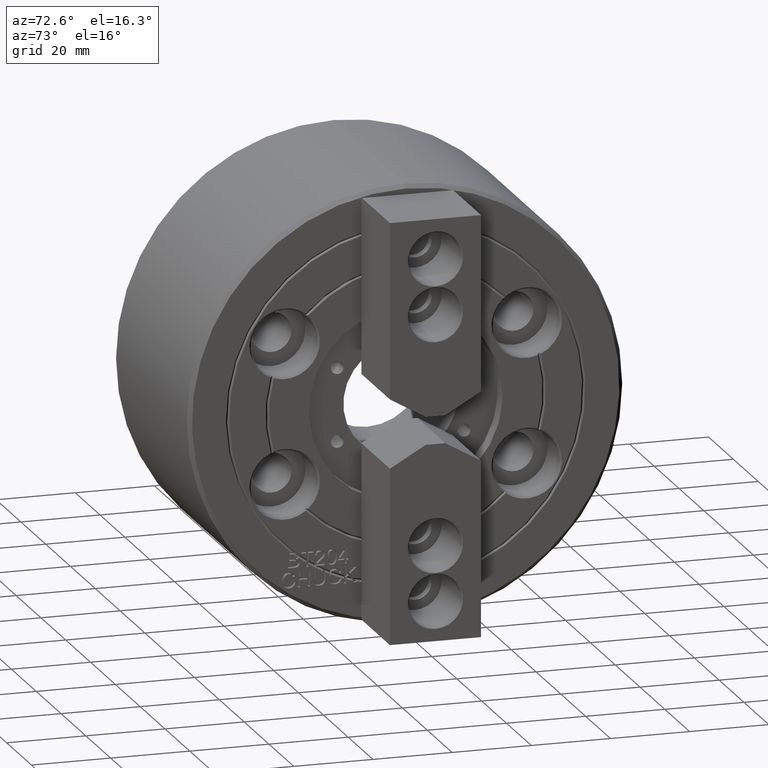
[diagram: clean part render]
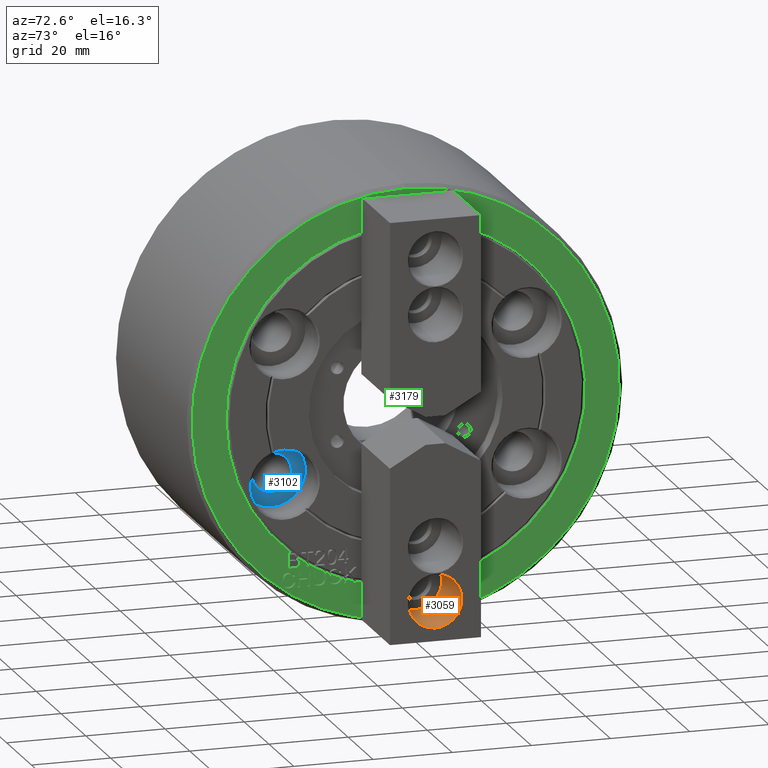
[diagram: same view with three faces highlighted in distinct colors, each labeled with its STEP entity id]
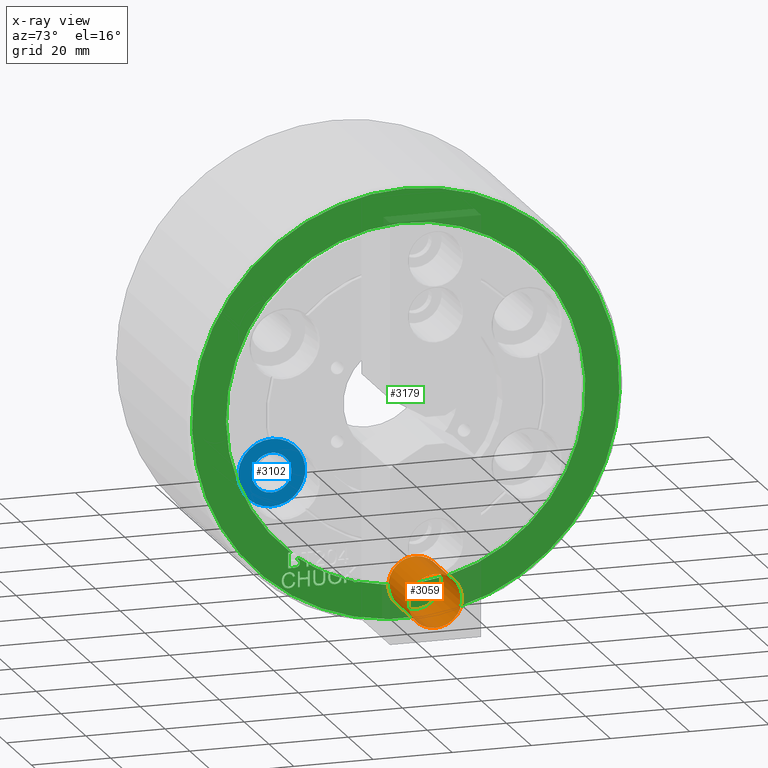
[diagram: x-ray of the same camera — body ghosted, the three highlighted faces saturated]
A machine part, auxiliary view with three faces highlighted in distinct colors.
The next image is the same camera in x-ray (body ghosted, the three faces saturated) — at least one of them is partly hidden behind the body in this view.
Their STEP definitions:

[orange] entity #3059 — the highlighted cylindrical surface (bore or boss wall) has radius 6.75 mm, axis along (1, 0, 0).
#603=CYLINDRICAL_SURFACE('',#4364,6.75);
#753=ORIENTED_EDGE('',*,*,#1626,.F.);
#754=ORIENTED_EDGE('',*,*,#1621,.T.);
#1621=EDGE_CURVE('',#2060,#2060,#2368,.T.);
#1626=EDGE_CURVE('',#2065,#2065,#2373,.T.);
#2060=VERTEX_POINT('',#5537);
#2065=VERTEX_POINT('',#5552);
#2368=CIRCLE('',#4352,6.75);
#2373=CIRCLE('',#4362,6.75);
#2507=EDGE_LOOP('',(#753));
#2508=EDGE_LOOP('',(#754));
#2764=FACE_BOUND('',#2507,.T.);
#2765=FACE_BOUND('',#2508,.T.);
#3059=ADVANCED_FACE('',(#2764,#2765),#603,.F.);
#4352=AXIS2_PLACEMENT_3D('',#5536,#4665,#4666);
#4362=AXIS2_PLACEMENT_3D('',#5551,#4685,#4686);
#4364=AXIS2_PLACEMENT_3D('',#5555,#4689,#4690);
#4665=DIRECTION('',(1.,1.57214084700305E-48,2.56758564431078E-32));
#4666=DIRECTION('',(-2.56758564431078E-32,1.22460635382238E-16,1.));
#4685=DIRECTION('',(1.,1.57214084700305E-48,2.56758564431078E-32));
#4686=DIRECTION('',(-2.56758564431078E-32,1.22460635382238E-16,1.));
#4689=DIRECTION('',(1.,1.57214084700305E-48,2.56758564431078E-32));
#4690=DIRECTION('',(-2.56758564431078E-32,1.22460635382238E-16,1.));
#5536=CARTESIAN_POINT('',(22.5737654320988,-5.26580732143622E-15,-43.));
#5537=CARTESIAN_POINT('',(22.5737654320988,-4.43919803260611E-15,-36.25));
#5551=CARTESIAN_POINT('',(6.27376543209876,-5.26580732143622E-15,-43.));
#5552=CARTESIAN_POINT('',(6.27376543209876,-4.43919803260611E-15,-36.25));
#5555=CARTESIAN_POINT('',(22.7737654320987,-5.26580732143622E-15,-43.));

[blue] entity #3102 — the highlighted planar face has unit normal (-1, 0, -0).
#658=PLANE('',#4435);
#910=ORIENTED_EDGE('',*,*,#1715,.T.);
#911=ORIENTED_EDGE('',*,*,#1716,.T.);
#1715=EDGE_CURVE('',#2135,#2135,#2402,.T.);
#1716=EDGE_CURVE('',#2136,#2136,#2403,.T.);
#2135=VERTEX_POINT('',#5778);
#2136=VERTEX_POINT('',#5781);
#2402=CIRCLE('',#4434,5.);
#2403=CIRCLE('',#4436,8.5);
#2569=EDGE_LOOP('',(#910));
#2570=EDGE_LOOP('',(#911));
#2827=FACE_BOUND('',#2569,.T.);
#2828=FACE_BOUND('',#2570,.T.);
#3102=ADVANCED_FACE('',(#2827,#2828),#658,.F.);
#4434=AXIS2_PLACEMENT_3D('',#5777,#4881,#4882);
#4435=AXIS2_PLACEMENT_3D('',#5779,#4883,#4884);
#4436=AXIS2_PLACEMENT_3D('',#5780,#4885,#4886);
#4881=DIRECTION('',(-1.,1.94469227433161E-64,-1.28379282215539E-32));
#4882=DIRECTION('',(1.28379282215539E-32,-1.22460635382238E-16,-1.));
#4883=DIRECTION('',(-1.,0.,-1.28379282215539E-32));
#4884=DIRECTION('',(1.28379282215539E-32,-1.22460635382238E-16,-1.));
#4885=DIRECTION('',(1.,5.38323120922244E-64,1.28379282215539E-32));
#4886=DIRECTION('',(-1.28379282215539E-32,1.22460635382238E-16,1.));
#5777=CARTESIAN_POINT('',(-11.7262345679013,-30.5706967535907,-17.65));
#5778=CARTESIAN_POINT('',(-11.7262345679013,-30.5706967535907,-22.65));
#5779=CARTESIAN_POINT('',(-11.7262345679012,-30.5706967535907,-17.65));
#5780=CARTESIAN_POINT('',(-11.7262345679012,-30.5706967535907,-17.65));
#5781=CARTESIAN_POINT('',(-11.7262345679012,-30.5706967535907,-9.15));

[green] entity #3179 — the highlighted planar face has unit normal (1, 0, 0).
#52=B_SPLINE_CURVE_WITH_KNOTS('',3,(#6146,#6147,#6148,#6149,#6150,#6151,
#6152,#6153,#6154,#6155,#6156,#6157,#6158,#6159,#6160,#6161,#6162,#6163,
#6164,#6165),.UNSPECIFIED.,.F.,.F.,(4,3,2,3,2,3,3,4),(0.568080121154886,
0.68590091662487,0.71886630569844,0.75183169477201,0.779770695533837,0.827760038018859,
0.882178233401456,0.976573618531979),.UNSPECIFIED.);
#58=B_SPLINE_CURVE_WITH_KNOTS('',3,(#6461,#6462,#6463,#6464,#6465,#6466,
#6467,#6468,#6469,#6470,#6471,#6472,#6473,#6474,#6475,#6476),
 .UNSPECIFIED.,.F.,.F.,(4,2,3,3,2,2,4),(0.763004922940154,0.791627346098575,
0.839987625210893,0.877902091876134,0.913676001262745,0.956838000631373,
1.),.UNSPECIFIED.);
#59=B_SPLINE_CURVE_WITH_KNOTS('',3,(#6480,#6481,#6482,#6483,#6484,#6485,
#6486,#6487,#6488,#6489,#6490,#6491,#6492,#6493,#6494,#6495,#6496),
 .UNSPECIFIED.,.F.,.F.,(4,3,2,3,3,2,4),(0.0278436539527602,0.0877108893516481,
0.143362700888472,0.200786863111183,0.251227263299032,0.305377381369806,
0.348216674022099),.UNSPECIFIED.);
#60=B_SPLINE_CURVE_WITH_KNOTS('',3,(#6497,#6498,#6499,#6500,#6501,#6502,
#6503,#6504,#6505,#6506,#6507,#6508,#6509,#6510,#6511,#6512,#6513,#6514,
#6515,#6516,#6517,#6518,#6519),.UNSPECIFIED.,.F.,.F.,(4,3,2,3,2,3,3,3,4),
(0.0643476073785704,0.144968444195788,0.189428848972784,0.23388925374978,
0.283324127265613,0.3317291075832,0.371032347368499,0.423102598824062,0.540932472429083),
 .UNSPECIFIED.);
#61=B_SPLINE_CURVE_WITH_KNOTS('',3,(#6532,#6533,#6534,#6535),
 .UNSPECIFIED.,.F.,.F.,(4,4),(0.589520842246351,0.628540365527271),
 .UNSPECIFIED.);
#62=B_SPLINE_CURVE_WITH_KNOTS('',3,(#6537,#6538,#6539,#6540,#6541,#6542,
#6543,#6544,#6545,#6546,#6547,#6548,#6549,#6550,#6551,#6552,#6553,#6554,
#6555),.UNSPECIFIED.,.F.,.F.,(4,3,2,3,2,2,3,4),(0.628540365527271,0.678970450824372,
0.727580255133196,0.767250325316259,0.807153353066396,0.847056380816533,
0.886959408566669,1.),.UNSPECIFIED.);
#63=B_SPLINE_CURVE_WITH_KNOTS('',3,(#6563,#6564,#6565,#6566,#6567,#6568,
#6569,#6570,#6571,#6572,#6573,#6574,#6575,#6576,#6577,#6578,#6579,#6580,
#6581,#6582,#6583,#6584,#6585,#6586,#6587,#6588),.UNSPECIFIED.,.F.,.F.,
(4,2,2,3,3,2,3,3,2,2,4),(0.600512355469098,0.637382773970115,0.674253192471132,
0.716234362051499,0.754207124291954,0.791613895620118,0.839978206024208,
0.877895833222853,0.913395766694803,0.956697883347402,1.),.UNSPECIFIED.);
#64=B_SPLINE_CURVE_WITH_KNOTS('',3,(#6592,#6593,#6594,#6595,#6596,#6597,
#6598,#6599,#6600,#6601,#6602,#6603,#6604,#6605,#6606,#6607,#6608,#6609,
#6610,#6611,#6612,#6613,#6614,#6615,#6616,#6617,#6618),.UNSPECIFIED.,.F.,
 .F.,(4,3,2,3,2,2,3,3,2,3,4),(0.0278459749876088,0.0877182008931263,0.143374651540686,
0.200803600616511,0.253736339429397,0.306669078242284,0.36401287862291,
0.414399005016711,0.464071342990801,0.520092776796167,0.573219631939499),
 .UNSPECIFIED.);
#166=LINE('',#6029,#419);
#169=LINE('',#6035,#422);
#188=LINE('',#6220,#441);
#191=LINE('',#6226,#444);
#193=LINE('',#6230,#446);
#195=LINE('',#6234,#448);
#197=LINE('',#6238,#450);
#199=LINE('',#6242,#452);
#201=LINE('',#6246,#454);
#203=LINE('',#6250,#456);
#205=LINE('',#6254,#458);
#207=LINE('',#6258,#460);
#209=LINE('',#6262,#462);
#211=LINE('',#6266,#464);
#262=LINE('',#6455,#515);
#263=LINE('',#6457,#516);
#264=LINE('',#6458,#517);
#265=LINE('',#6460,#518);
#266=LINE('',#6478,#519);
#267=LINE('',#6521,#520);
#268=LINE('',#6524,#521);
#269=LINE('',#6526,#522);
#270=LINE('',#6528,#523);
#271=LINE('',#6557,#524);
#272=LINE('',#6559,#525);
#273=LINE('',#6560,#526);
#274=LINE('',#6590,#527);
#419=VECTOR('',#5126,1000.);
#422=VECTOR('',#5133,1000.);
#441=VECTOR('',#5160,1000.);
#444=VECTOR('',#5165,1000.);
#446=VECTOR('',#5169,1000.);
#448=VECTOR('',#5173,1000.);
#450=VECTOR('',#5177,1000.);
#452=VECTOR('',#5181,1000.);
#454=VECTOR('',#5185,1000.);
#456=VECTOR('',#5189,1000.);
#458=VECTOR('',#5193,1000.);
#460=VECTOR('',#5197,1000.);
#462=VECTOR('',#5201,1000.);
#464=VECTOR('',#5205,1000.);
#515=VECTOR('',#5304,1000.);
#516=VECTOR('',#5305,1000.);
#517=VECTOR('',#5306,1000.);
#518=VECTOR('',#5307,1000.);
#519=VECTOR('',#5308,1000.);
#520=VECTOR('',#5309,1000.);
#521=VECTOR('',#5312,1000.);
#522=VECTOR('',#5313,1000.);
#523=VECTOR('',#5314,1000.);
#524=VECTOR('',#5317,1000.);
#525=VECTOR('',#5318,1000.);
#526=VECTOR('',#5319,1000.);
#527=VECTOR('',#5320,1000.);
#702=PLANE('',#4587);
#1238=ORIENTED_EDGE('',*,*,#1719,.T.);
#1239=ORIENTED_EDGE('',*,*,#1925,.T.);
#1240=ORIENTED_EDGE('',*,*,#1926,.T.);
#1241=ORIENTED_EDGE('',*,*,#1819,.T.);
#1242=ORIENTED_EDGE('',*,*,#1724,.T.);
#1243=ORIENTED_EDGE('',*,*,#1816,.T.);
#1244=ORIENTED_EDGE('',*,*,#1927,.T.);
#1245=ORIENTED_EDGE('',*,*,#1928,.T.);
#1246=ORIENTED_EDGE('',*,*,#1917,.T.);
#1247=ORIENTED_EDGE('',*,*,#1929,.T.);
#1248=ORIENTED_EDGE('',*,*,#1930,.T.);
#1249=ORIENTED_EDGE('',*,*,#1931,.T.);
#1250=ORIENTED_EDGE('',*,*,#1732,.T.);
#1251=ORIENTED_EDGE('',*,*,#1932,.T.);
#1252=ORIENTED_EDGE('',*,*,#1933,.T.);
#1253=ORIENTED_EDGE('',*,*,#1826,.T.);
#1254=ORIENTED_EDGE('',*,*,#1934,.T.);
#1255=ORIENTED_EDGE('',*,*,#1935,.T.);
#1256=ORIENTED_EDGE('',*,*,#1936,.T.);
#1257=ORIENTED_EDGE('',*,*,#1937,.T.);
#1258=ORIENTED_EDGE('',*,*,#1938,.T.);
#1259=ORIENTED_EDGE('',*,*,#1939,.T.);
#1260=ORIENTED_EDGE('',*,*,#1940,.T.);
#1261=ORIENTED_EDGE('',*,*,#1941,.T.);
#1262=ORIENTED_EDGE('',*,*,#1942,.T.);
#1263=ORIENTED_EDGE('',*,*,#1843,.T.);
#1264=ORIENTED_EDGE('',*,*,#1866,.T.);
#1265=ORIENTED_EDGE('',*,*,#1864,.T.);
#1266=ORIENTED_EDGE('',*,*,#1862,.T.);
#1267=ORIENTED_EDGE('',*,*,#1860,.T.);
#1268=ORIENTED_EDGE('',*,*,#1858,.T.);
#1269=ORIENTED_EDGE('',*,*,#1856,.T.);
#1270=ORIENTED_EDGE('',*,*,#1854,.T.);
#1271=ORIENTED_EDGE('',*,*,#1852,.T.);
#1272=ORIENTED_EDGE('',*,*,#1850,.T.);
#1273=ORIENTED_EDGE('',*,*,#1848,.T.);
#1274=ORIENTED_EDGE('',*,*,#1846,.T.);
#1275=ORIENTED_EDGE('',*,*,#1777,.F.);
#1276=ORIENTED_EDGE('',*,*,#1943,.T.);
#1277=ORIENTED_EDGE('',*,*,#1944,.T.);
#1278=ORIENTED_EDGE('',*,*,#1945,.T.);
#1279=ORIENTED_EDGE('',*,*,#1946,.T.);
#1719=EDGE_CURVE('',#2140,#2139,#2406,.T.);
#1724=EDGE_CURVE('',#2143,#2144,#2410,.T.);
#1732=EDGE_CURVE('',#2150,#2151,#2417,.T.);
#1777=EDGE_CURVE('',#2182,#2182,#2455,.T.);
#1816=EDGE_CURVE('',#2144,#2209,#166,.T.);
#1819=EDGE_CURVE('',#2211,#2143,#169,.T.);
#1826=EDGE_CURVE('',#2216,#2217,#52,.T.);
#1843=EDGE_CURVE('',#2233,#2234,#188,.T.);
#1846=EDGE_CURVE('',#2235,#2233,#191,.T.);
#1848=EDGE_CURVE('',#2236,#2235,#193,.T.);
#1850=EDGE_CURVE('',#2237,#2236,#195,.T.);
#1852=EDGE_CURVE('',#2238,#2237,#197,.T.);
#1854=EDGE_CURVE('',#2239,#2238,#199,.T.);
#1856=EDGE_CURVE('',#2240,#2239,#201,.T.);
#1858=EDGE_CURVE('',#2241,#2240,#203,.T.);
#1860=EDGE_CURVE('',#2242,#2241,#205,.T.);
#1862=EDGE_CURVE('',#2243,#2242,#207,.T.);
#1864=EDGE_CURVE('',#2244,#2243,#209,.T.);
#1866=EDGE_CURVE('',#2234,#2244,#211,.T.);
#1917=EDGE_CURVE('',#2281,#2282,#2475,.T.);
#1925=EDGE_CURVE('',#2139,#2289,#262,.T.);
#1926=EDGE_CURVE('',#2289,#2211,#263,.T.);
#1927=EDGE_CURVE('',#2209,#2290,#264,.T.);
#1928=EDGE_CURVE('',#2290,#2281,#265,.T.);
#1929=EDGE_CURVE('',#2282,#2291,#58,.T.);
#1930=EDGE_CURVE('',#2291,#2292,#266,.T.);
#1931=EDGE_CURVE('',#2292,#2150,#59,.T.);
#1932=EDGE_CURVE('',#2151,#2293,#60,.T.);
#1933=EDGE_CURVE('',#2293,#2216,#267,.T.);
#1934=EDGE_CURVE('',#2217,#2294,#2479,.T.);
#1935=EDGE_CURVE('',#2294,#2295,#268,.T.);
#1936=EDGE_CURVE('',#2295,#2296,#269,.T.);
#1937=EDGE_CURVE('',#2296,#2297,#270,.T.);
#1938=EDGE_CURVE('',#2297,#2298,#2480,.T.);
#1939=EDGE_CURVE('',#2298,#2299,#61,.T.);
#1940=EDGE_CURVE('',#2299,#2300,#62,.T.);
#1941=EDGE_CURVE('',#2300,#2301,#271,.T.);
#1942=EDGE_CURVE('',#2301,#2140,#272,.T.);
#1943=EDGE_CURVE('',#2302,#2303,#273,.T.);
#1944=EDGE_CURVE('',#2303,#2304,#63,.T.);
#1945=EDGE_CURVE('',#2304,#2305,#274,.T.);
#1946=EDGE_CURVE('',#2305,#2302,#64,.T.);
#2139=VERTEX_POINT('',#5788);
#2140=VERTEX_POINT('',#5790);
#2143=VERTEX_POINT('',#5808);
#2144=VERTEX_POINT('',#5809);
#2150=VERTEX_POINT('',#5825);
#2151=VERTEX_POINT('',#5826);
#2182=VERTEX_POINT('',#5929);
#2209=VERTEX_POINT('',#6028);
#2211=VERTEX_POINT('',#6036);
#2216=VERTEX_POINT('',#6166);
#2217=VERTEX_POINT('',#6167);
#2233=VERTEX_POINT('',#6221);
#2234=VERTEX_POINT('',#6222);
#2235=VERTEX_POINT('',#6227);
#2236=VERTEX_POINT('',#6231);
#2237=VERTEX_POINT('',#6235);
#2238=VERTEX_POINT('',#6239);
#2239=VERTEX_POINT('',#6243);
#2240=VERTEX_POINT('',#6247);
#2241=VERTEX_POINT('',#6251);
#2242=VERTEX_POINT('',#6255);
#2243=VERTEX_POINT('',#6259);
#2244=VERTEX_POINT('',#6263);
#2281=VERTEX_POINT('',#6423);
#2282=VERTEX_POINT('',#6424);
#2289=VERTEX_POINT('',#6456);
#2290=VERTEX_POINT('',#6459);
#2291=VERTEX_POINT('',#6477);
#2292=VERTEX_POINT('',#6479);
#2293=VERTEX_POINT('',#6520);
#2294=VERTEX_POINT('',#6523);
#2295=VERTEX_POINT('',#6525);
#2296=VERTEX_POINT('',#6527);
#2297=VERTEX_POINT('',#6529);
#2298=VERTEX_POINT('',#6531);
#2299=VERTEX_POINT('',#6536);
#2300=VERTEX_POINT('',#6556);
#2301=VERTEX_POINT('',#6558);
#2302=VERTEX_POINT('',#6561);
#2303=VERTEX_POINT('',#6562);
#2304=VERTEX_POINT('',#6589);
#2305=VERTEX_POINT('',#6591);
#2406=CIRCLE('',#4441,45.4);
#2410=CIRCLE('',#4447,45.4);
#2417=CIRCLE('',#4456,45.4);
#2455=CIRCLE('',#4512,54.);
#2475=CIRCLE('',#4582,45.4);
#2479=CIRCLE('',#4588,45.4);
#2480=CIRCLE('',#4589,45.4);
#2670=EDGE_LOOP('',(#1238,#1239,#1240,#1241,#1242,#1243,#1244,#1245,#1246,
#1247,#1248,#1249,#1250,#1251,#1252,#1253,#1254,#1255,#1256,#1257,#1258,
#1259,#1260,#1261,#1262));
#2671=EDGE_LOOP('',(#1263,#1264,#1265,#1266,#1267,#1268,#1269,#1270,#1271,
#1272,#1273,#1274));
#2672=EDGE_LOOP('',(#1275));
#2673=EDGE_LOOP('',(#1276,#1277,#1278,#1279));
#2928=FACE_BOUND('',#2670,.T.);
#2929=FACE_BOUND('',#2671,.T.);
#2930=FACE_BOUND('',#2672,.T.);
#2931=FACE_BOUND('',#2673,.T.);
#3179=ADVANCED_FACE('',(#2928,#2929,#2930,#2931),#702,.T.);
#4441=AXIS2_PLACEMENT_3D('',#5789,#4895,#4896);
#4447=AXIS2_PLACEMENT_3D('',#5807,#4907,#4908);
#4456=AXIS2_PLACEMENT_3D('',#5824,#4926,#4927);
#4512=AXIS2_PLACEMENT_3D('',#5928,#5042,#5043);
#4582=AXIS2_PLACEMENT_3D('',#6422,#5290,#5291);
#4587=AXIS2_PLACEMENT_3D('',#6454,#5302,#5303);
#4588=AXIS2_PLACEMENT_3D('',#6522,#5310,#5311);
#4589=AXIS2_PLACEMENT_3D('',#6530,#5315,#5316);
#4895=DIRECTION('',(-1.,0.,-1.28379282215539E-32));
#4896=DIRECTION('',(-1.28379282215539E-32,0.,1.));
#4907=DIRECTION('',(-1.,0.,-1.28379282215539E-32));
#4908=DIRECTION('',(-1.28379282215539E-32,0.,1.));
#4926=DIRECTION('',(-1.,0.,-1.28379282215539E-32));
#4927=DIRECTION('',(-1.28379282215539E-32,0.,1.));
#5042=DIRECTION('',(-1.,0.,-1.28379282215539E-32));
#5043=DIRECTION('',(-1.28379282215539E-32,0.,1.));
#5126=DIRECTION('',(0.,0.,-1.));
#5133=DIRECTION('',(0.,-0.576852198517935,0.816848542304523));
#5160=DIRECTION('',(0.,0.,-1.));
#5165=DIRECTION('',(0.,-1.,0.));
#5169=DIRECTION('',(0.,0.,1.));
#5173=DIRECTION('',(0.,-1.,0.));
#5177=DIRECTION('',(0.,0.,-1.));
#5181=DIRECTION('',(0.,1.,0.));
#5185=DIRECTION('',(0.,0.,1.));
#5189=DIRECTION('',(0.,1.,0.));
#5193=DIRECTION('',(0.,0.,-1.));
#5197=DIRECTION('',(0.,1.,0.));
#5201=DIRECTION('',(0.,0.,1.));
#5205=DIRECTION('',(0.,-1.,0.));
#5290=DIRECTION('',(-1.,0.,-1.28379282215539E-32));
#5291=DIRECTION('',(-1.28379282215539E-32,0.,1.));
#5302=DIRECTION('',(1.,0.,1.28379282215539E-32));
#5303=DIRECTION('',(1.28379282215539E-32,0.,-1.));
#5304=DIRECTION('',(0.,0.593352593529007,-0.80494266861212));
#5305=DIRECTION('',(0.,-1.,0.));
#5306=DIRECTION('',(0.,-1.,0.));
#5307=DIRECTION('',(0.,0.,1.));
#5308=DIRECTION('',(0.,0.96899179314664,-0.247092907252432));
#5309=DIRECTION('',(0.,1.,0.));
#5310=DIRECTION('',(-1.,0.,-1.28379282215539E-32));
#5311=DIRECTION('',(-1.28379282215539E-32,0.,1.));
#5312=DIRECTION('',(0.,0.,-1.));
#5313=DIRECTION('',(0.,-1.,0.));
#5314=DIRECTION('',(0.,0.,1.));
#5315=DIRECTION('',(-1.,0.,-1.28379282215539E-32));
#5316=DIRECTION('',(-1.28379282215539E-32,0.,1.));
#5317=DIRECTION('',(0.,0.,1.));
#5318=DIRECTION('',(0.,1.,0.));
#5319=DIRECTION('',(0.,-0.97380473545665,-0.22738587731476));
#5320=DIRECTION('',(0.,0.968991793146652,-0.247092907252386));
#5788=CARTESIAN_POINT('',(-1.22623456790125,-12.4224330322028,-43.6674152837151));
#5789=CARTESIAN_POINT('',(-1.22623456790125,0.,-7.86114289120399E-31));
#5790=CARTESIAN_POINT('',(-1.22623456790125,-28.9733996789205,-34.9528555492327));
#5807=CARTESIAN_POINT('',(-1.22623456790125,0.,-7.86114289120399E-31));
#5808=CARTESIAN_POINT('',(-1.22623456790125,-13.2736558790603,-43.4162418871588));
#5809=CARTESIAN_POINT('',(-1.22623456790125,-15.0267967630652,-42.8410478284733));
#5824=CARTESIAN_POINT('',(-1.22623456790125,0.,-7.86114289120399E-31));
#5825=CARTESIAN_POINT('',(-1.22623456790125,-19.4595182271005,-41.0181319707413));
#5826=CARTESIAN_POINT('',(-1.22623456790125,-20.2837188493498,-40.6168776451432));
#5928=CARTESIAN_POINT('',(-1.22623456790125,0.,-7.86114289120399E-31));
#5929=CARTESIAN_POINT('',(-1.22623456790125,0.,54.));
#6028=CARTESIAN_POINT('',(-1.22623456790125,-15.0267967630652,-43.7822180733796));
#6029=CARTESIAN_POINT('',(-1.22623456790125,-15.0267967630652,-43.3116329509265));
#6035=CARTESIAN_POINT('',(-1.22623456790125,-13.1444310860337,-43.5992299802692));
#6036=CARTESIAN_POINT('',(-1.22623456790125,-13.0152062930072,-43.7822180733796));
#6146=CARTESIAN_POINT('',(-1.22623456790125,-22.8027143419448,-39.9110010740235));
#6147=CARTESIAN_POINT('',(-1.22623456790125,-22.8027143419448,-40.656225371083));
#6148=CARTESIAN_POINT('',(-1.22623456790125,-22.8027143419448,-41.4014496681424));
#6149=CARTESIAN_POINT('',(-1.22623456790125,-22.8027143419448,-42.1466739652018));
#6150=CARTESIAN_POINT('',(-1.22623456790125,-22.8027143419448,-42.4840854268889));
#6151=CARTESIAN_POINT('',(-1.22623456790125,-22.7718064217902,-42.7313487881252));
#6152=CARTESIAN_POINT('',(-1.22623456790125,-22.648174741172,-43.0507306297222));
#6153=CARTESIAN_POINT('',(-1.22623456790125,-22.5399970206311,-43.1717866503274));
#6154=CARTESIAN_POINT('',(-1.22623456790125,-22.3906087398842,-43.2593590907652));
#6155=CARTESIAN_POINT('',(-1.22623456790125,-22.2404272470271,-43.3473965176126));
#6156=CARTESIAN_POINT('',(-1.22623456790125,-22.05577293821,-43.3881420914092));
#6157=CARTESIAN_POINT('',(-1.22623456790125,-21.4607954752351,-43.3881420914092));
#6158=CARTESIAN_POINT('',(-1.22623456790125,-21.1955024939087,-43.3031453109842));
#6159=CARTESIAN_POINT('',(-1.22623456790125,-21.0358115731102,-43.1305760901213));
#6160=CARTESIAN_POINT('',(-1.22623456790125,-20.8785927666503,-42.9606783476566));
#6161=CARTESIAN_POINT('',(-1.22623456790125,-20.7988508519254,-42.6334737076359));
#6162=CARTESIAN_POINT('',(-1.22623456790125,-20.7988508519254,-42.1466739652018));
#6163=CARTESIAN_POINT('',(-1.22623456790125,-20.7988508519254,-41.5496218536914));
#6164=CARTESIAN_POINT('',(-1.22623456790125,-20.7988508519254,-40.952569742181));
#6165=CARTESIAN_POINT('',(-1.22623456790125,-20.7988508519254,-40.3555176306705));
#6166=CARTESIAN_POINT('',(-1.22623456790125,-22.8027143419448,-39.9110010740235));
#6167=CARTESIAN_POINT('',(-1.22623456790125,-20.7988508519254,-40.3555176306705));
#6220=CARTESIAN_POINT('',(-1.22623456790125,-26.7074149214683,-42.8691465988142));
#6221=CARTESIAN_POINT('',(-1.22623456790125,-26.7074149214683,-41.9560751242488));
#6222=CARTESIAN_POINT('',(-1.22623456790125,-26.7074149214683,-43.7822180733796));
#6226=CARTESIAN_POINT('',(-1.22623456790125,-25.7041953464521,-41.9560751242488));
#6227=CARTESIAN_POINT('',(-1.22623456790125,-24.700975771436,-41.9560751242488));
#6230=CARTESIAN_POINT('',(-1.22623456790125,-24.700975771436,-42.8691465988142));
#6231=CARTESIAN_POINT('',(-1.22623456790125,-24.700975771436,-43.7822180733796));
#6234=CARTESIAN_POINT('',(-1.22623456790125,-24.4434097701482,-43.7822180733796));
#6235=CARTESIAN_POINT('',(-1.22623456790125,-24.1858437688604,-43.7822180733796));
#6238=CARTESIAN_POINT('',(-1.22623456790125,-24.1858437688604,-41.8466095737015));
#6239=CARTESIAN_POINT('',(-1.22623456790125,-24.1858437688604,-39.9110010740235));
#6242=CARTESIAN_POINT('',(-1.22623456790125,-24.4434097701482,-39.9110010740235));
#6243=CARTESIAN_POINT('',(-1.22623456790125,-24.700975771436,-39.9110010740235));
#6246=CARTESIAN_POINT('',(-1.22623456790125,-24.700975771436,-40.7030165279836));
#6247=CARTESIAN_POINT('',(-1.22623456790125,-24.700975771436,-41.4950319819437));
#6250=CARTESIAN_POINT('',(-1.22623456790125,-25.7041953464521,-41.4950319819437));
#6251=CARTESIAN_POINT('',(-1.22623456790125,-26.7074149214683,-41.4950319819437));
#6254=CARTESIAN_POINT('',(-1.22623456790125,-26.7074149214683,-40.7030165279836));
#6255=CARTESIAN_POINT('',(-1.22623456790125,-26.7074149214683,-39.9110010740235));
#6258=CARTESIAN_POINT('',(-1.22623456790125,-26.9649809227561,-39.9110010740235));
#6259=CARTESIAN_POINT('',(-1.22623456790125,-27.2225469240439,-39.9110010740235));
#6262=CARTESIAN_POINT('',(-1.22623456790125,-27.2225469240439,-41.8466095737015));
#6263=CARTESIAN_POINT('',(-1.22623456790125,-27.2225469240439,-43.7822180733796));
#6266=CARTESIAN_POINT('',(-1.22623456790125,-26.9649809227561,-43.7822180733796));
#6422=CARTESIAN_POINT('',(-1.22623456790125,0.,-7.86114289120399E-31));
#6423=CARTESIAN_POINT('',(-1.22623456790125,-15.5419287656408,-42.6568687346334));
#6424=CARTESIAN_POINT('',(-1.22623456790125,-18.982588168158,-41.2410153419883));
#6454=CARTESIAN_POINT('',(-1.22623456790125,0.,54.));
#6455=CARTESIAN_POINT('',(-1.22623456790125,-12.3801203709115,-43.7248166785474));
#6456=CARTESIAN_POINT('',(-1.22623456790125,-12.3378077096202,-43.7822180733796));
#6457=CARTESIAN_POINT('',(-1.22623456790125,-12.6765070013137,-43.7822180733796));
#6458=CARTESIAN_POINT('',(-1.22623456790125,-15.284362764353,-43.7822180733796));
#6459=CARTESIAN_POINT('',(-1.22623456790125,-15.5419287656408,-43.7822180733796));
#6460=CARTESIAN_POINT('',(-1.22623456790125,-15.5419287656408,-43.2195434040065));
#6461=CARTESIAN_POINT('',(-1.22623456790125,-18.982588168158,-41.2410153419882));
#6462=CARTESIAN_POINT('',(-1.22623456790125,-19.0302339788124,-41.4280620130841));
#6463=CARTESIAN_POINT('',(-1.22623456790125,-19.0525533631939,-41.6192873909451));
#6464=CARTESIAN_POINT('',(-1.22623456790125,-19.0525533631939,-42.144098305189));
#6465=CARTESIAN_POINT('',(-1.22623456790125,-19.0036158229493,-42.4325722266314));
#6466=CARTESIAN_POINT('',(-1.22623456790125,-18.9083164024727,-42.6772599278548));
#6467=CARTESIAN_POINT('',(-1.22623456790125,-18.8121459559288,-42.9241840473595));
#6468=CARTESIAN_POINT('',(-1.22623456790125,-18.6636287012493,-43.1073951500055));
#6469=CARTESIAN_POINT('',(-1.22623456790125,-18.4627272202448,-43.2310268306236));
#6470=CARTESIAN_POINT('',(-1.22623456790125,-18.2611072074771,-43.3551006846346));
#6471=CARTESIAN_POINT('',(-1.22623456790125,-18.0428946381457,-43.4113230315251));
#6472=CARTESIAN_POINT('',(-1.22623456790125,-17.5200356555314,-43.4113230315251));
#6473=CARTESIAN_POINT('',(-1.22623456790125,-17.2779236143208,-43.328901911113));
#6474=CARTESIAN_POINT('',(-1.22623456790125,-16.8812719723375,-42.9992174294645));
#6475=CARTESIAN_POINT('',(-1.22623456790125,-16.7473376516678,-42.7519540682283));
#6476=CARTESIAN_POINT('',(-1.22623456790125,-16.6777948313201,-42.4248452465927));
#6477=CARTESIAN_POINT('',(-1.22623456790125,-16.6777948313201,-42.4248452465927));
#6478=CARTESIAN_POINT('',(-1.22623456790125,-16.4202288300323,-42.4905245769211));
#6479=CARTESIAN_POINT('',(-1.22623456790125,-16.1626628287445,-42.5562039072495));
#6480=CARTESIAN_POINT('',(-1.22623456790125,-16.1626628287445,-42.5562039072495));
#6481=CARTESIAN_POINT('',(-1.22623456790125,-16.2682648892725,-42.9760364893486));
#6482=CARTESIAN_POINT('',(-1.22623456790125,-16.4614393902384,-43.2954183309456));
#6483=CARTESIAN_POINT('',(-1.22623456790125,-16.7421863316421,-43.5169250920531));
#6484=CARTESIAN_POINT('',(-1.22623456790125,-17.020093326292,-43.7361911612264));
#6485=CARTESIAN_POINT('',(-1.22623456790125,-17.3603447347329,-43.8466095737015));
#6486=CARTESIAN_POINT('',(-1.22623456790125,-18.181980278841,-43.8466095737015));
#6487=CARTESIAN_POINT('',(-1.22623456790125,-18.5193917405281,-43.7616127932766));
#6488=CARTESIAN_POINT('',(-1.22623456790125,-18.7821090618417,-43.5916192324265));
#6489=CARTESIAN_POINT('',(-1.22623456790125,-19.0418361047013,-43.423560557635));
#6490=CARTESIAN_POINT('',(-1.22623456790125,-19.2431522041469,-43.1769379703531));
#6491=CARTESIAN_POINT('',(-1.22623456790125,-19.3796621848294,-42.8549804687434));
#6492=CARTESIAN_POINT('',(-1.22623456790125,-19.5157796826556,-42.5339486342479));
#6493=CARTESIAN_POINT('',(-1.22623456790125,-19.5831393258469,-42.1878845254079));
#6494=CARTESIAN_POINT('',(-1.22623456790125,-19.5831393258469,-41.5235666470506));
#6495=CARTESIAN_POINT('',(-1.22623456790125,-19.5419322929314,-41.2576151658248));
#6496=CARTESIAN_POINT('',(-1.22623456790125,-19.4595182271005,-41.0181319707412));
#6497=CARTESIAN_POINT('',(-1.22623456790125,-20.2837188493498,-40.6168776451432));
#6498=CARTESIAN_POINT('',(-1.22623456790125,-20.2837188493498,-41.1268097518294));
#6499=CARTESIAN_POINT('',(-1.22623456790125,-20.2837188493498,-41.6367418585156));
#6500=CARTESIAN_POINT('',(-1.22623456790125,-20.2837188493498,-42.1466739652018));
#6501=CARTESIAN_POINT('',(-1.22623456790125,-20.2837188493498,-42.5355986271465));
#6502=CARTESIAN_POINT('',(-1.22623456790125,-20.3275050695687,-42.8446778286919));
#6503=CARTESIAN_POINT('',(-1.22623456790125,-20.5026499504444,-43.3031453109842));
#6504=CARTESIAN_POINT('',(-1.22623456790125,-20.6623408712429,-43.4885928319115));
#6505=CARTESIAN_POINT('',(-1.22623456790125,-20.8889989523762,-43.6328297926326));
#6506=CARTESIAN_POINT('',(-1.22623456790125,-21.1163236749246,-43.7774909797089));
#6507=CARTESIAN_POINT('',(-1.22623456790125,-21.4195849150291,-43.8466095737015));
#6508=CARTESIAN_POINT('',(-1.22623456790125,-22.1536480186994,-43.8466095737015));
#6509=CARTESIAN_POINT('',(-1.22623456790125,-22.4472732601676,-43.7847937333924));
#6510=CARTESIAN_POINT('',(-1.22623456790125,-22.6790826613266,-43.6585863927614));
#6511=CARTESIAN_POINT('',(-1.22623456790125,-22.9078236397867,-43.534049637822));
#6512=CARTESIAN_POINT('',(-1.22623456790125,-23.0705829832841,-43.3546585112417));
#6513=CARTESIAN_POINT('',(-1.22623456790125,-23.1710337237864,-43.1176977900569));
#6514=CARTESIAN_POINT('',(-1.22623456790125,-23.271092117881,-42.8816626039875));
#6515=CARTESIAN_POINT('',(-1.22623456790125,-23.3178463445204,-42.5562039072495));
#6516=CARTESIAN_POINT('',(-1.22623456790125,-23.3178463445204,-42.1466739652018));
#6517=CARTESIAN_POINT('',(-1.22623456790125,-23.3178463445204,-41.4014496681424));
#6518=CARTESIAN_POINT('',(-1.22623456790125,-23.3178463445204,-40.656225371083));
#6519=CARTESIAN_POINT('',(-1.22623456790125,-23.3178463445204,-39.9110010740235));
#6520=CARTESIAN_POINT('',(-1.22623456790125,-23.3178463445204,-39.9110010740235));
#6521=CARTESIAN_POINT('',(-1.22623456790125,-23.0602803432326,-39.9110010740235));
#6522=CARTESIAN_POINT('',(-1.22623456790125,0.,-7.86114289120399E-31));
#6523=CARTESIAN_POINT('',(-1.22623456790125,-24.533557870599,-38.2003211794086));
#6524=CARTESIAN_POINT('',(-1.22623456790125,-24.533557870599,-38.5121968639987));
#6525=CARTESIAN_POINT('',(-1.22623456790125,-24.533557870599,-38.8240725485889));
#6526=CARTESIAN_POINT('',(-1.22623456790125,-24.7911238718868,-38.8240725485889));
#6527=CARTESIAN_POINT('',(-1.22623456790125,-25.0486898731746,-38.8240725485889));
#6528=CARTESIAN_POINT('',(-1.22623456790125,-25.0486898731746,-38.3443045987552));
#6529=CARTESIAN_POINT('',(-1.22623456790125,-25.0486898731746,-37.8645366489215));
#6530=CARTESIAN_POINT('',(-1.22623456790125,0.,-7.86114289120399E-31));
#6531=CARTESIAN_POINT('',(-1.22623456790125,-27.0794989805358,-36.4398234760153));
#6532=CARTESIAN_POINT('',(-1.22623456790125,-27.0794989805359,-36.4398234760153));
#6533=CARTESIAN_POINT('',(-1.22623456790125,-27.1698529762741,-36.5711341042238));
#6534=CARTESIAN_POINT('',(-1.22623456790125,-27.2968126904949,-36.6795337253702));
#6535=CARTESIAN_POINT('',(-1.22623456790125,-27.4672346252674,-36.7635445382862));
#6536=CARTESIAN_POINT('',(-1.22623456790125,-27.4672346252674,-36.7635445382862));
#6537=CARTESIAN_POINT('',(-1.22623456790125,-27.4672346252674,-36.7635445382862));
#6538=CARTESIAN_POINT('',(-1.22623456790125,-27.2328495640954,-36.8330873586339));
#6539=CARTESIAN_POINT('',(-1.22623456790125,-27.052553363194,-36.9489920592134));
#6540=CARTESIAN_POINT('',(-1.22623456790125,-26.9263460225629,-37.1164099600505));
#6541=CARTESIAN_POINT('',(-1.22623456790125,-26.8023100729418,-37.2809474442417));
#6542=CARTESIAN_POINT('',(-1.22623456790125,-26.7383228416228,-37.4770023618535));
#6543=CARTESIAN_POINT('',(-1.22623456790125,-26.7383228416228,-37.8839566438882));
#6544=CARTESIAN_POINT('',(-1.22623456790125,-26.7769577418159,-38.0513745447253));
#6545=CARTESIAN_POINT('',(-1.22623456790125,-26.8542275422023,-38.208489805511));
#6546=CARTESIAN_POINT('',(-1.22623456790125,-26.9299756910338,-38.3625110414682));
#6547=CARTESIAN_POINT('',(-1.22623456790125,-27.0242211030522,-38.4840854268889));
#6548=CARTESIAN_POINT('',(-1.22623456790125,-27.2508791841856,-38.6540789877388));
#6549=CARTESIAN_POINT('',(-1.22623456790125,-27.389964824881,-38.715894828048));
#6550=CARTESIAN_POINT('',(-1.22623456790125,-27.7299519465809,-38.8034672684858));
#6551=CARTESIAN_POINT('',(-1.22623456790125,-27.9385804076241,-38.8240725485889));
#6552=CARTESIAN_POINT('',(-1.22623456790125,-28.1858437688604,-38.8240725485889));
#6553=CARTESIAN_POINT('',(-1.22623456790125,-28.6769362779825,-38.8240725485889));
#6554=CARTESIAN_POINT('',(-1.22623456790125,-29.1680287871047,-38.8240725485889));
#6555=CARTESIAN_POINT('',(-1.22623456790125,-29.6591212962267,-38.8240725485889));
#6556=CARTESIAN_POINT('',(-1.22623456790125,-29.6591212962267,-38.8240725485889));
#6557=CARTESIAN_POINT('',(-1.22623456790125,-29.6591212962267,-36.8884640489108));
#6558=CARTESIAN_POINT('',(-1.22623456790125,-29.6591212962267,-34.9528555492327));
#6559=CARTESIAN_POINT('',(-1.22623456790125,-29.3162604875736,-34.9528555492327));
#6560=CARTESIAN_POINT('',(-1.22623456790125,-28.1922829188926,-41.0314131796256));
#6561=CARTESIAN_POINT('',(-1.22623456790125,-27.9385804076241,-40.9721729993294));
#6562=CARTESIAN_POINT('',(-1.22623456790125,-28.4459854301611,-41.0906533599218));
#6563=CARTESIAN_POINT('',(-1.22623456790125,-28.4459854301611,-41.0906533599218));
#6564=CARTESIAN_POINT('',(-1.22623456790125,-28.533557870599,-40.809906418518));
#6565=CARTESIAN_POINT('',(-1.22623456790125,-28.6649165312557,-40.6038536174878));
#6566=CARTESIAN_POINT('',(-1.22623456790125,-29.0049036529557,-40.3462876161999));
#6567=CARTESIAN_POINT('',(-1.22623456790125,-29.2186834340246,-40.2818961158779));
#6568=CARTESIAN_POINT('',(-1.22623456790125,-29.7750259968063,-40.2818961158779));
#6569=CARTESIAN_POINT('',(-1.22623456790125,-30.0222893580426,-40.3540145962385));
#6570=CARTESIAN_POINT('',(-1.22623456790125,-30.2206151790343,-40.4956758969469));
#6571=CARTESIAN_POINT('',(-1.22623456790125,-30.420646504629,-40.6385554152289));
#6572=CARTESIAN_POINT('',(-1.22623456790125,-30.5606023007342,-40.8305116986211));
#6573=CARTESIAN_POINT('',(-1.22623456790125,-30.6430234211463,-41.0700480798187));
#6574=CARTESIAN_POINT('',(-1.22623456790125,-30.7259643067134,-41.3110950284984));
#6575=CARTESIAN_POINT('',(-1.22623456790125,-30.7640794417516,-41.5594234822656));
#6576=CARTESIAN_POINT('',(-1.22623456790125,-30.7640794417516,-42.144098305189));
#6577=CARTESIAN_POINT('',(-1.22623456790125,-30.7151419015069,-42.4325722266314));
#6578=CARTESIAN_POINT('',(-1.22623456790125,-30.6198424810304,-42.6772599278548));
#6579=CARTESIAN_POINT('',(-1.22623456790125,-30.5236720344864,-42.9241840473595));
#6580=CARTESIAN_POINT('',(-1.22623456790125,-30.3751547798069,-43.1073951500055));
#6581=CARTESIAN_POINT('',(-1.22623456790125,-30.1742532988024,-43.2310268306236));
#6582=CARTESIAN_POINT('',(-1.22623456790125,-29.9726332860347,-43.3551006846346));
#6583=CARTESIAN_POINT('',(-1.22623456790125,-29.7518450566904,-43.4113230315251));
#6584=CARTESIAN_POINT('',(-1.22623456790125,-29.2315617340889,-43.4113230315251));
#6585=CARTESIAN_POINT('',(-1.22623456790125,-28.9894496928784,-43.328901911113));
#6586=CARTESIAN_POINT('',(-1.22623456790125,-28.5927980508951,-42.9992174294645));
#6587=CARTESIAN_POINT('',(-1.22623456790125,-28.4588637302255,-42.7519540682283));
#6588=CARTESIAN_POINT('',(-1.22623456790125,-28.3893209098778,-42.4248452465927));
#6589=CARTESIAN_POINT('',(-1.22623456790125,-28.3893209098778,-42.4248452465927));
#6590=CARTESIAN_POINT('',(-1.22623456790125,-28.1317549085899,-42.4905245769211));
#6591=CARTESIAN_POINT('',(-1.22623456790125,-27.8741889073021,-42.5562039072495));
#6592=CARTESIAN_POINT('',(-1.22623456790125,-27.8741889073021,-42.5562039072495));
#6593=CARTESIAN_POINT('',(-1.22623456790125,-27.9797909678301,-42.9760364893486));
#6594=CARTESIAN_POINT('',(-1.22623456790125,-28.172965468796,-43.2954183309456));
#6595=CARTESIAN_POINT('',(-1.22623456790125,-28.4537124101997,-43.5169250920531));
#6596=CARTESIAN_POINT('',(-1.22623456790125,-28.7316194048496,-43.7361911612264));
#6597=CARTESIAN_POINT('',(-1.22623456790125,-29.0718708132905,-43.8466095737015));
#6598=CARTESIAN_POINT('',(-1.22623456790125,-29.8935063573987,-43.8466095737015));
#6599=CARTESIAN_POINT('',(-1.22623456790125,-30.2309178190858,-43.7616127932766));
#6600=CARTESIAN_POINT('',(-1.22623456790125,-30.4936351403993,-43.5916192324265));
#6601=CARTESIAN_POINT('',(-1.22623456790125,-30.753362183259,-43.423560557635));
#6602=CARTESIAN_POINT('',(-1.22623456790125,-30.9521026226917,-43.1769379703531));
#6603=CARTESIAN_POINT('',(-1.22623456790125,-31.2251225840568,-42.5330229671336));
#6604=CARTESIAN_POINT('',(-1.22623456790125,-31.2946654044045,-42.1878845254079));
#6605=CARTESIAN_POINT('',(-1.22623456790125,-31.2946654044045,-41.4151865215444));
#6606=CARTESIAN_POINT('',(-1.22623456790125,-31.2173956040182,-41.0648967597929));
#6607=CARTESIAN_POINT('',(-1.22623456790125,-31.0628560032455,-40.7635445382862));
#6608=CARTESIAN_POINT('',(-1.22623456790125,-30.9093622196566,-40.4642316602878));
#6609=CARTESIAN_POINT('',(-1.22623456790125,-30.6893853013781,-40.2355342356461));
#6610=CARTESIAN_POINT('',(-1.22623456790125,-30.4060626999615,-40.0809946348735));
#6611=CARTESIAN_POINT('',(-1.22623456790125,-30.1196722741983,-39.9247816753662));
#6612=CARTESIAN_POINT('',(-1.22623456790125,-29.8085095769737,-39.8466095737015));
#6613=CARTESIAN_POINT('',(-1.22623456790125,-29.0795977933292,-39.8466095737015));
#6614=CARTESIAN_POINT('',(-1.22623456790125,-28.7550646317065,-39.9444846541909));
#6615=CARTESIAN_POINT('',(-1.22623456790125,-28.48977165038,-40.1428104751826));
#6616=CARTESIAN_POINT('',(-1.22623456790125,-28.2257138582882,-40.3402129022803));
#6617=CARTESIAN_POINT('',(-1.22623456790125,-28.0416068081392,-40.6141562575393));
#6618=CARTESIAN_POINT('',(-1.22623456790125,-27.9385804076241,-40.9721729993294));